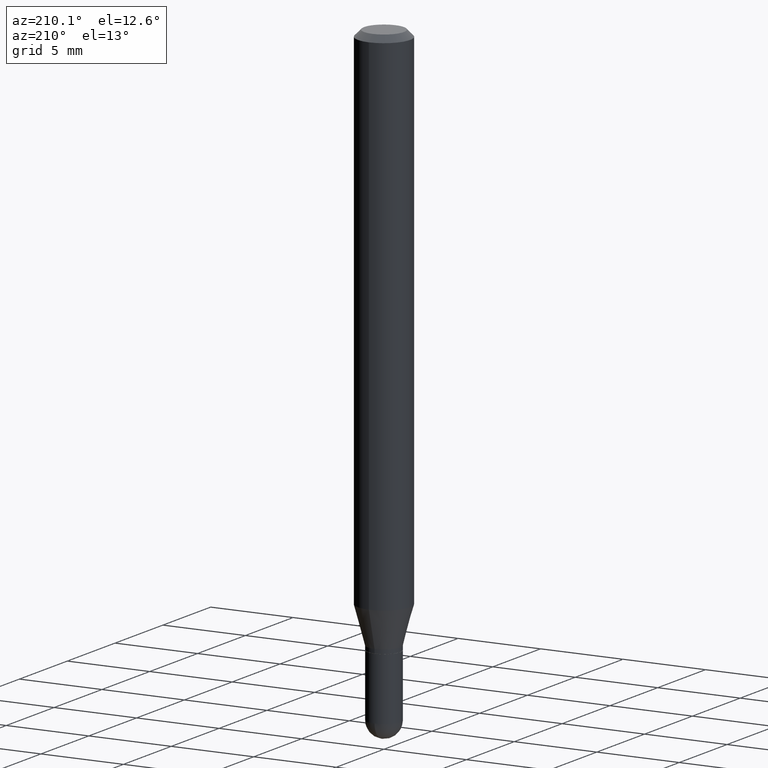
[diagram: clean part render]
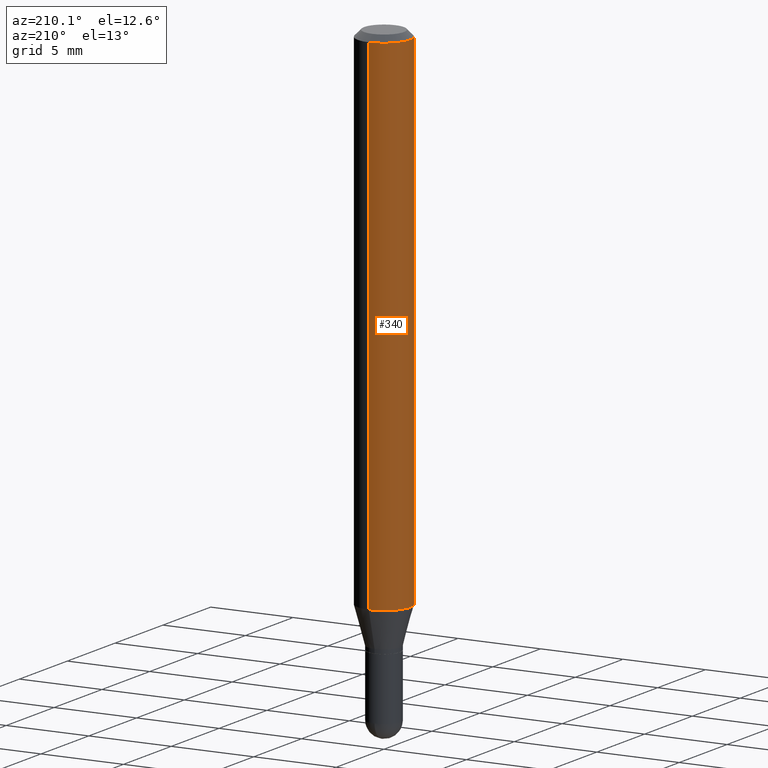
[diagram: same view with one face highlighted and labeled with its STEP entity id]
A machine part, auxiliary view. The second image highlights one B-rep face of the part: STEP entity #340.
In plain terms, the highlighted cylindrical surface (edge-blend (fillet) strip) has radius 1.5875 mm, axis along (-0, 0, 1).
Its self-contained STEP definition (entity closure, byte-faithful):
#14 = EDGE_CURVE ( 'NONE', #414, #182, #26, .T. ) ;
#16 = DIRECTION ( 'NONE',  ( -2.445435285253421308E-29, 3.491529342725254773E-15, 1.000000000000000000 ) ) ;
#18 = LINE ( 'NONE', #173, #280 ) ;
#26 = CIRCLE ( 'NONE', #77, 0.06250000000000000000 ) ;
#27 = CARTESIAN_POINT ( 'NONE',  ( 4.440892098500920012E-16, 0.06249999999999572564, -1.215483408562509915 ) ) ;
#33 = DIRECTION ( 'NONE',  ( -2.445435285253421308E-29, 3.491529342725254773E-15, 1.000000000000000000 ) ) ;
#54 = CARTESIAN_POINT ( 'NONE',  ( 0.000000000000000000, 0.000000000000000000, 0.000000000000000000 ) ) ;
#60 = ORIENTED_EDGE ( 'NONE', *, *, #232, .T. ) ;
#69 = DIRECTION ( 'NONE',  ( -6.982962677686265922E-15, -1.000000000000000000, 3.483106191921935554E-15 ) ) ;
#77 = AXIS2_PLACEMENT_3D ( 'NONE', #148, #306, #69 ) ;
#138 = DIRECTION ( 'NONE',  ( -6.982962677686265922E-15, -1.000000000000000000, 4.370956789862821150E-15 ) ) ;
#148 = CARTESIAN_POINT ( 'NONE',  ( 3.668152927880133994E-31, -5.237294014087885586E-17, -0.01500000000000000812 ) ) ;
#149 = LINE ( 'NONE', #462, #226 ) ;
#173 = CARTESIAN_POINT ( 'NONE',  ( -4.364351673553916201E-16, -0.06250000000000000000, 2.182205839203284233E-16 ) ) ;
#175 = DIRECTION ( 'NONE',  ( -2.445435285253421308E-29, 3.491529342725255167E-15, 1.000000000000000000 ) ) ;
#179 = ORIENTED_EDGE ( 'NONE', *, *, #426, .F. ) ;
#182 = VERTEX_POINT ( 'NONE', #315 ) ;
#222 = VERTEX_POINT ( 'NONE', #448 ) ;
#226 = VECTOR ( 'NONE', #33, 39.37007874015748143 ) ;
#229 = CARTESIAN_POINT ( 'NONE',  ( 4.440892098500924943E-16, 0.06249999999999993755, -0.01500000000000022669 ) ) ;
#232 = EDGE_CURVE ( 'NONE', #222, #182, #18, .T. ) ;
#243 = AXIS2_PLACEMENT_3D ( 'NONE', #54, #175, #334 ) ;
#249 = EDGE_LOOP ( 'NONE', ( #179, #262, #60, #282 ) ) ;
#262 = ORIENTED_EDGE ( 'NONE', *, *, #332, .T. ) ;
#280 = VECTOR ( 'NONE', #16, 39.37007874015748143 ) ;
#282 = ORIENTED_EDGE ( 'NONE', *, *, #14, .F. ) ;
#306 = DIRECTION ( 'NONE',  ( -2.445435285253421308E-29, 3.491529342725255167E-15, 1.000000000000000000 ) ) ;
#315 = CARTESIAN_POINT ( 'NONE',  ( -4.364351673553912750E-16, -0.06250000000000005551, -0.01499999999999979128 ) ) ;
#327 = FACE_OUTER_BOUND ( 'NONE', #249, .T. ) ;
#332 = EDGE_CURVE ( 'NONE', #485, #222, #348, .T. ) ;
#334 = DIRECTION ( 'NONE',  ( -6.982962677686265922E-15, -1.000000000000000000, 3.491529342725254773E-15 ) ) ;
#340 = ADVANCED_FACE ( 'NONE', ( #327 ), #365, .T. ) ;
#348 = CIRCLE ( 'NONE', #416, 0.06250000000000000000 ) ;
#365 = CYLINDRICAL_SURFACE ( 'NONE', #243, 0.06250000000000000000 ) ;
#401 = DIRECTION ( 'NONE',  ( -2.445435285253421308E-29, 3.491529342725255167E-15, 1.000000000000000000 ) ) ;
#414 = VERTEX_POINT ( 'NONE', #229 ) ;
#416 = AXIS2_PLACEMENT_3D ( 'NONE', #484, #401, #138 ) ;
#426 = EDGE_CURVE ( 'NONE', #485, #414, #149, .T. ) ;
#448 = CARTESIAN_POINT ( 'NONE',  ( -4.364351673553621857E-16, -0.06250000000000427436, -1.215483408562509471 ) ) ;
#462 = CARTESIAN_POINT ( 'NONE',  ( 4.440892098500625669E-16, 0.06250000000000000000, -2.182205839203284233E-16 ) ) ;
#484 = CARTESIAN_POINT ( 'NONE',  ( 2.972386015938861663E-29, -4.243895986591712384E-15, -1.215483408562509693 ) ) ;
#485 = VERTEX_POINT ( 'NONE', #27 ) ;